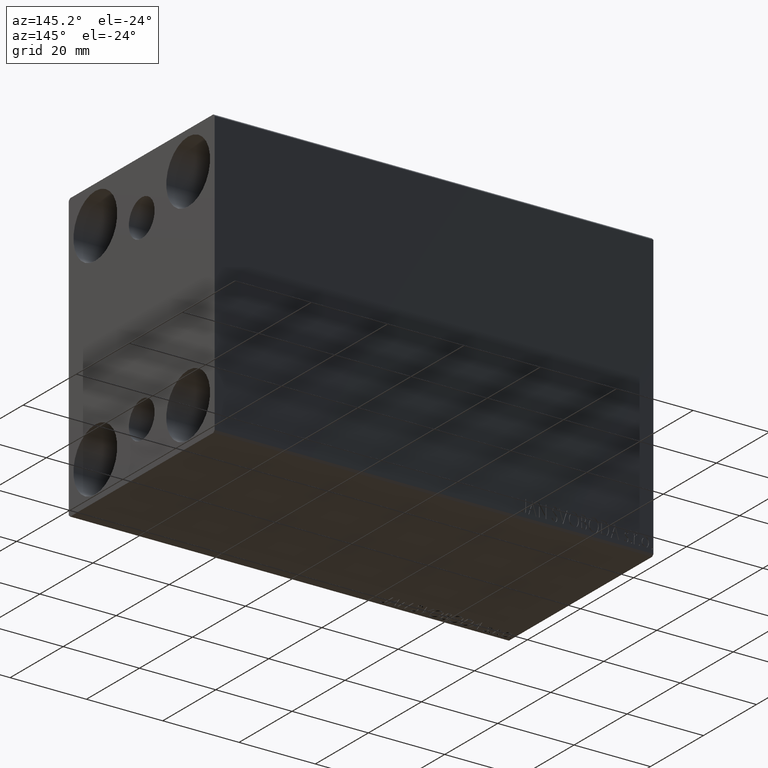
[diagram: clean part render]
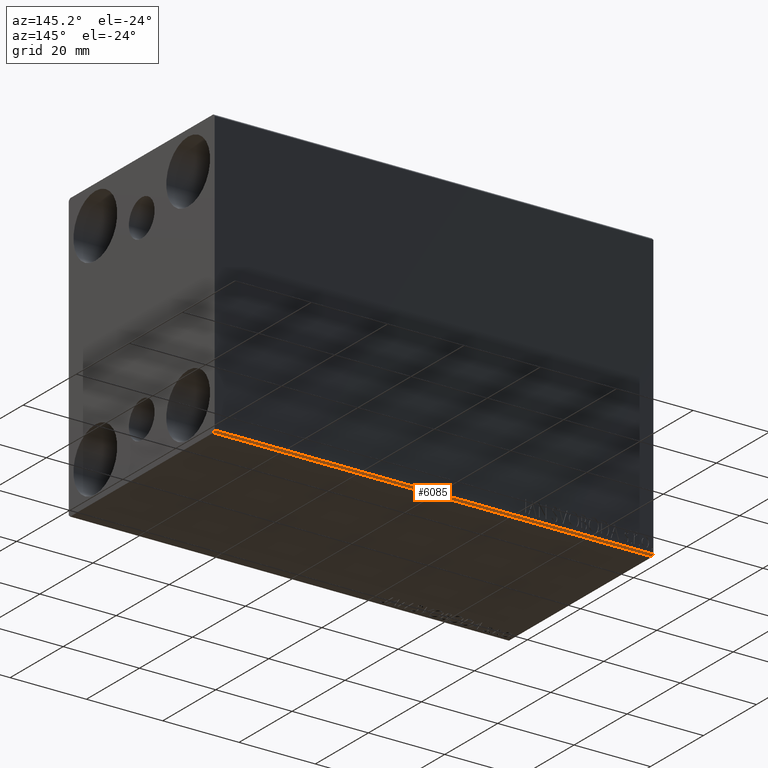
[diagram: same view with one face highlighted and labeled with its STEP entity id]
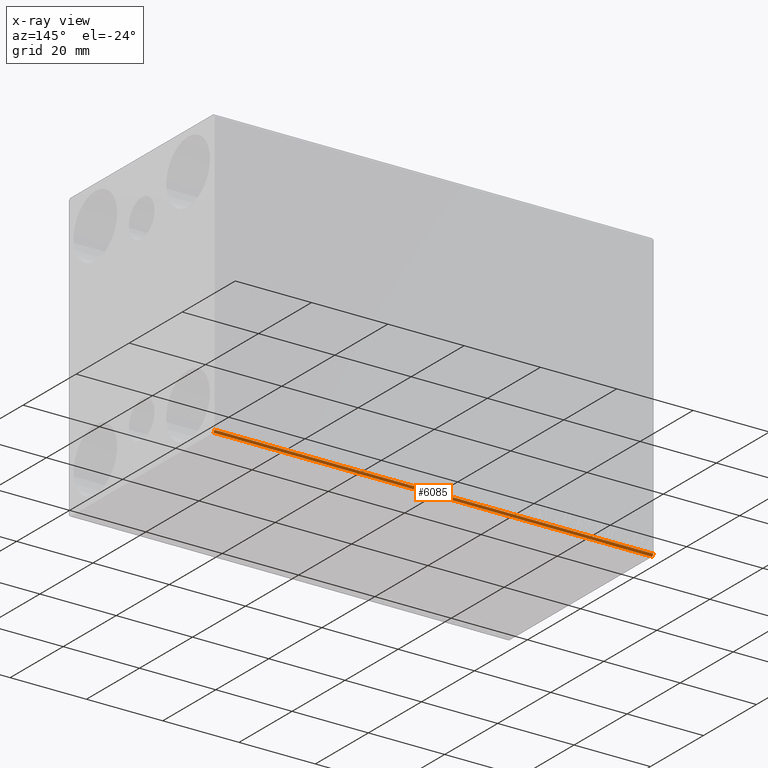
[diagram: x-ray of the same camera — body ghosted, the highlighted face saturated]
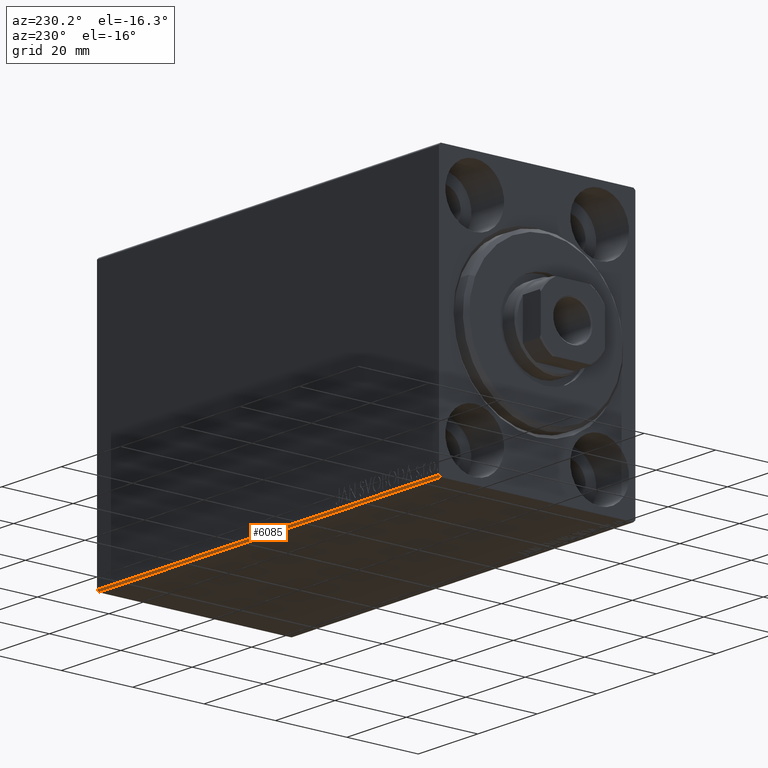
[diagram: same view with one face highlighted and labeled with its STEP entity id]
A machine part, auxiliary view. The second image highlights one B-rep face of the part: STEP entity #6085.
The next image is the same camera in x-ray: the body ghosted, the highlighted face saturated — about 0% of this face is hidden behind the body in this view.
A second angle (auxiliary view) of the same face is appended — the face is thin or edge-on in the first view.
In plain terms, the highlighted planar face has unit normal (0, -0.7071, 0.7071).
Its self-contained STEP definition (entity closure, byte-faithful):
#850 = EDGE_CURVE ( 'NONE', #8156, #10790, #11320, .T. ) ;
#2133 = VECTOR ( 'NONE', #15589, 1000.000000000000000 ) ;
#2703 = ORIENTED_EDGE ( 'NONE', *, *, #42820, .F. ) ;
#3783 = EDGE_CURVE ( 'NONE', #10790, #13286, #32320, .T. ) ;
#4044 = VECTOR ( 'NONE', #33492, 1000.000000000000000 ) ;
#6085 = ADVANCED_FACE ( 'NONE', ( #31513 ), #31076, .F. ) ;
#6404 = ORIENTED_EDGE ( 'NONE', *, *, #3783, .F. ) ;
#6866 = LINE ( 'NONE', #10172, #4044 ) ;
#8156 = VERTEX_POINT ( 'NONE', #34584 ) ;
#10172 = CARTESIAN_POINT ( 'NONE',  ( 0.000000000000000000, 27.50000000000000355, -37.00000000000000000 ) ) ;
#10790 = VERTEX_POINT ( 'NONE', #34130 ) ;
#11320 = LINE ( 'NONE', #25179, #16859 ) ;
#13286 = VERTEX_POINT ( 'NONE', #28452 ) ;
#14930 = CARTESIAN_POINT ( 'NONE',  ( 0.000000000000000000, 27.50000000000000355, -37.00000000000000000 ) ) ;
#15589 = DIRECTION ( 'NONE',  ( -0.000000000000000000, 0.7071067811865378028, 0.7071067811865573427 ) ) ;
#16024 = CARTESIAN_POINT ( 'NONE',  ( 115.0000000000000000, 32.25000000000038369, -32.24999999999949551 ) ) ;
#16149 = ORIENTED_EDGE ( 'NONE', *, *, #850, .F. ) ;
#16859 = VECTOR ( 'NONE', #22310, 1000.000000000000000 ) ;
#22310 = DIRECTION ( 'NONE',  ( 1.000000000000000000, 0.000000000000000000, 0.000000000000000000 ) ) ;
#25179 = CARTESIAN_POINT ( 'NONE',  ( 115.0000000000000000, 27.00000000000001776, -37.50000000000000000 ) ) ;
#25589 = CARTESIAN_POINT ( 'NONE',  ( 115.0000000000000000, 27.50000000000000355, -37.00000000000000000 ) ) ;
#28452 = CARTESIAN_POINT ( 'NONE',  ( 115.0000000000000000, 27.50000000000000355, -37.00000000000000000 ) ) ;
#28493 = VERTEX_POINT ( 'NONE', #14930 ) ;
#28665 = DIRECTION ( 'NONE',  ( -1.000000000000000000, 0.000000000000000000, 0.000000000000000000 ) ) ;
#31076 = PLANE ( 'NONE',  #40911 ) ;
#31513 = FACE_OUTER_BOUND ( 'NONE', #35245, .T. ) ;
#31731 = DIRECTION ( 'NONE',  ( 0.000000000000000000, -0.7071067811865573427, 0.7071067811865378028 ) ) ;
#32320 = LINE ( 'NONE', #16024, #2133 ) ;
#32553 = ORIENTED_EDGE ( 'NONE', *, *, #41638, .F. ) ;
#33492 = DIRECTION ( 'NONE',  ( 0.000000000000000000, -0.7071067811865378028, -0.7071067811865573427 ) ) ;
#34130 = CARTESIAN_POINT ( 'NONE',  ( 115.0000000000000000, 27.00000000000001776, -37.50000000000000000 ) ) ;
#34213 = VECTOR ( 'NONE', #28665, 1000.000000000000000 ) ;
#34584 = CARTESIAN_POINT ( 'NONE',  ( 0.000000000000000000, 27.00000000000001776, -37.50000000000000000 ) ) ;
#35245 = EDGE_LOOP ( 'NONE', ( #6404, #16149, #32553, #2703 ) ) ;
#38799 = LINE ( 'NONE', #25589, #34213 ) ;
#40911 = AXIS2_PLACEMENT_3D ( 'NONE', #41866, #31731, #41424 ) ;
#41424 = DIRECTION ( 'NONE',  ( -1.000000000000000000, 0.000000000000000000, 0.000000000000000000 ) ) ;
#41638 = EDGE_CURVE ( 'NONE', #28493, #8156, #6866, .T. ) ;
#41866 = CARTESIAN_POINT ( 'NONE',  ( 115.0000000000000000, 27.50000000000000355, -37.00000000000000000 ) ) ;
#42820 = EDGE_CURVE ( 'NONE', #13286, #28493, #38799, .T. ) ;